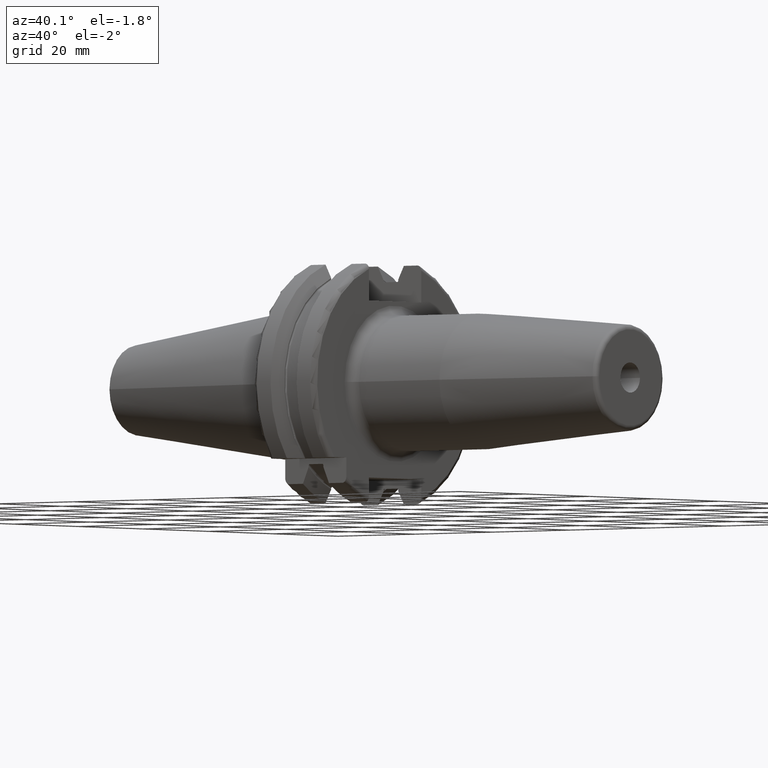
[diagram: clean part render]
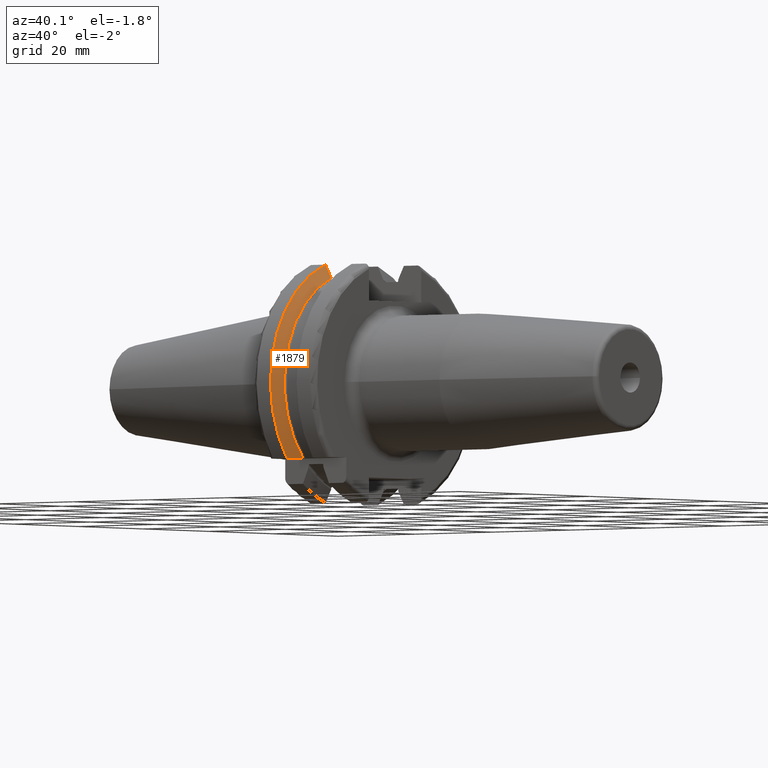
[diagram: same view with one face highlighted and labeled with its STEP entity id]
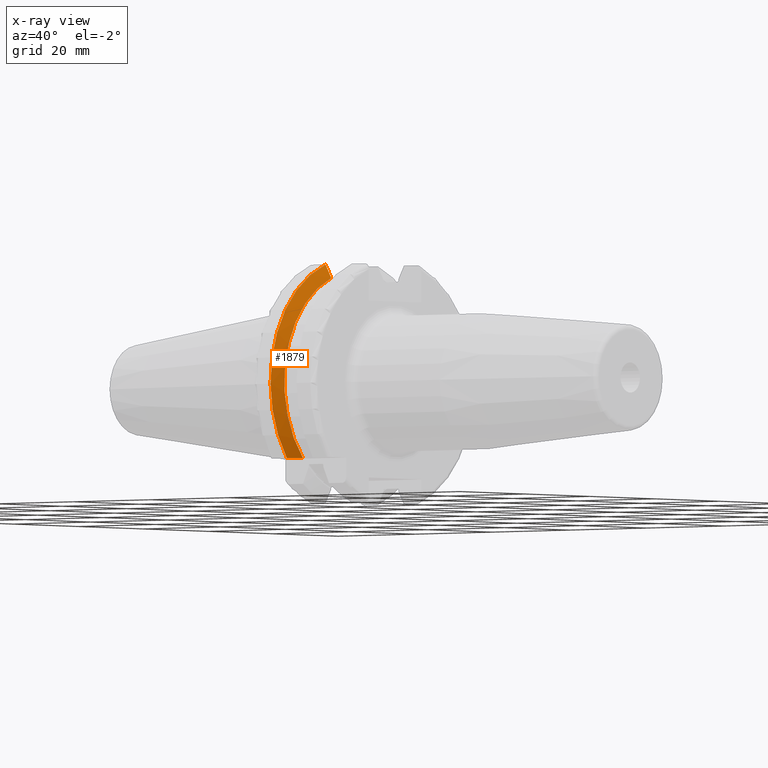
[diagram: x-ray of the same camera — body ghosted, the highlighted face saturated]
A machine part, auxiliary view. The second image highlights one B-rep face of the part: STEP entity #1879.
The next image is the same camera in x-ray: the body ghosted, the highlighted face saturated — about 0% of this face is hidden behind the body in this view.
In plain terms, the highlighted conical surface has half-angle 60 deg.
Its self-contained STEP definition (entity closure, byte-faithful):
#329=CARTESIAN_POINT('',(9.2625E0,0.E0,0.E0));
#330=DIRECTION('',(1.E0,0.E0,0.E0));
#331=DIRECTION('',(0.E0,-3.583743170026E-1,9.335779822344E-1));
#332=AXIS2_PLACEMENT_3D('',#329,#330,#331);
#334=CARTESIAN_POINT('',(7.803274427933E0,-1.998749859287E1,-1.5E1));
#335=CARTESIAN_POINT('',(7.981109124262E0,-1.960238846957E1,-1.5E1));
#336=CARTESIAN_POINT('',(8.326274153407E0,-1.884688509238E1,-1.5E1));
#337=CARTESIAN_POINT('',(8.812154104083E0,-1.775879937320E1,-1.5E1));
#338=CARTESIAN_POINT('',(9.115792378036E0,-1.706160176959E1,-1.5E1));
#339=CARTESIAN_POINT('',(9.2625E0,-1.672022802897E1,-1.5E1));
#341=CARTESIAN_POINT('',(7.803274427933E0,-8.05E0,2.365792890344E1));
#342=CARTESIAN_POINT('',(7.972427442555E0,-8.05E0,2.334845081669E1));
#343=CARTESIAN_POINT('',(8.306073844189E0,-8.05E0,2.273675949894E1));
#344=CARTESIAN_POINT('',(8.792438946834E0,-8.05E0,2.184111363646E1));
#345=CARTESIAN_POINT('',(9.107378251064E0,-8.05E0,2.125833411433E1));
#346=CARTESIAN_POINT('',(9.2625E0,-8.05E0,2.097053946232E1));
#398=CARTESIAN_POINT('',(7.803274427933E0,0.E0,0.E0));
#399=DIRECTION('',(1.E0,0.E0,0.E0));
#400=DIRECTION('',(0.E0,-3.221288515406E-1,9.466958344712E-1));
#401=AXIS2_PLACEMENT_3D('',#398,#399,#400);
#1234=CARTESIAN_POINT('',(9.2625E0,-8.05E0,2.097053946232E1));
#1236=VERTEX_POINT('',#1234);
#1246=CARTESIAN_POINT('',(9.2625E0,-1.672022802897E1,-1.5E1));
#1248=VERTEX_POINT('',#1246);
#1280=VERTEX_POINT('',#341);
#1301=VERTEX_POINT('',#334);
#1865=CARTESIAN_POINT('',(8.532887213966E0,0.E0,0.E0));
#1866=DIRECTION('',(-1.E0,0.E0,0.E0));
#1867=DIRECTION('',(0.E0,1.E0,0.E0));
#1868=AXIS2_PLACEMENT_3D('',#1865,#1866,#1867);
#1869=CONICAL_SURFACE('',#1868,2.372627358474E1,6.E1);
#1870=ORIENTED_EDGE('',*,*,#1695,.T.);
#1872=ORIENTED_EDGE('',*,*,#1871,.F.);
#1874=ORIENTED_EDGE('',*,*,#1873,.F.);
#1876=ORIENTED_EDGE('',*,*,#1875,.T.);
#1877=EDGE_LOOP('',(#1870,#1872,#1874,#1876));
#1878=FACE_OUTER_BOUND('',#1877,.F.);
#1879=ADVANCED_FACE('',(#1878),#1869,.T.);
#333=CIRCLE('',#332,2.246254716948E1);
#340=B_SPLINE_CURVE_WITH_KNOTS('',3,(#334,#335,#336,#337,#338,#339),
.UNSPECIFIED.,.F.,.F.,(4,1,1,4),(0.E0,3.333333333333E-1,6.666666666667E-1,1.E0),
.UNSPECIFIED.);
#347=B_SPLINE_CURVE_WITH_KNOTS('',3,(#341,#342,#343,#344,#345,#346),
.UNSPECIFIED.,.F.,.F.,(4,1,1,4),(0.E0,3.333333333333E-1,6.666666666667E-1,1.E0),
.UNSPECIFIED.);
#402=CIRCLE('',#401,2.499E1);
#1695=EDGE_CURVE('',#1236,#1248,#333,.T.);
#1871=EDGE_CURVE('',#1301,#1248,#340,.T.);
#1873=EDGE_CURVE('',#1280,#1301,#402,.T.);
#1875=EDGE_CURVE('',#1280,#1236,#347,.T.);